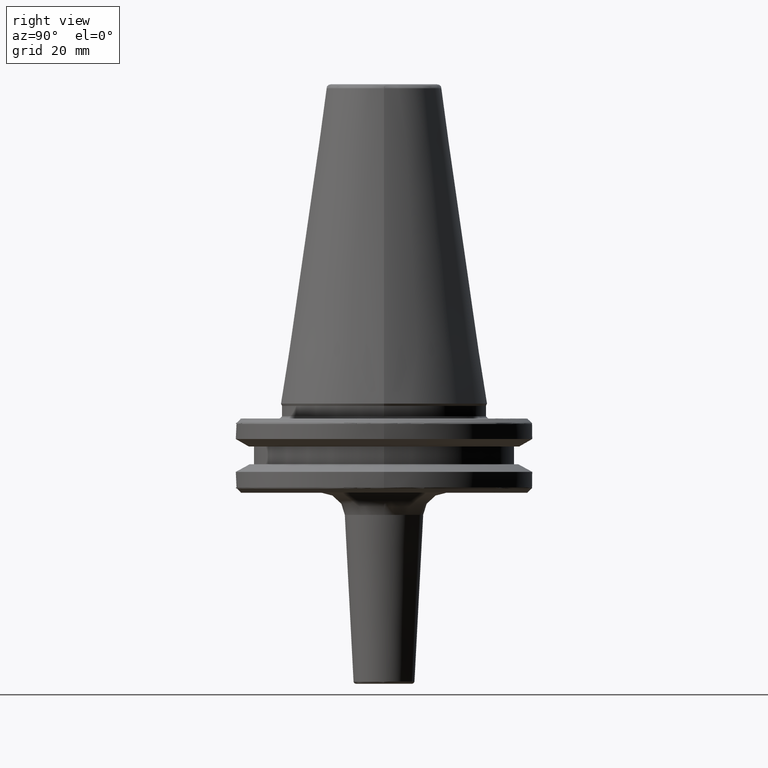
[diagram: clean part render]
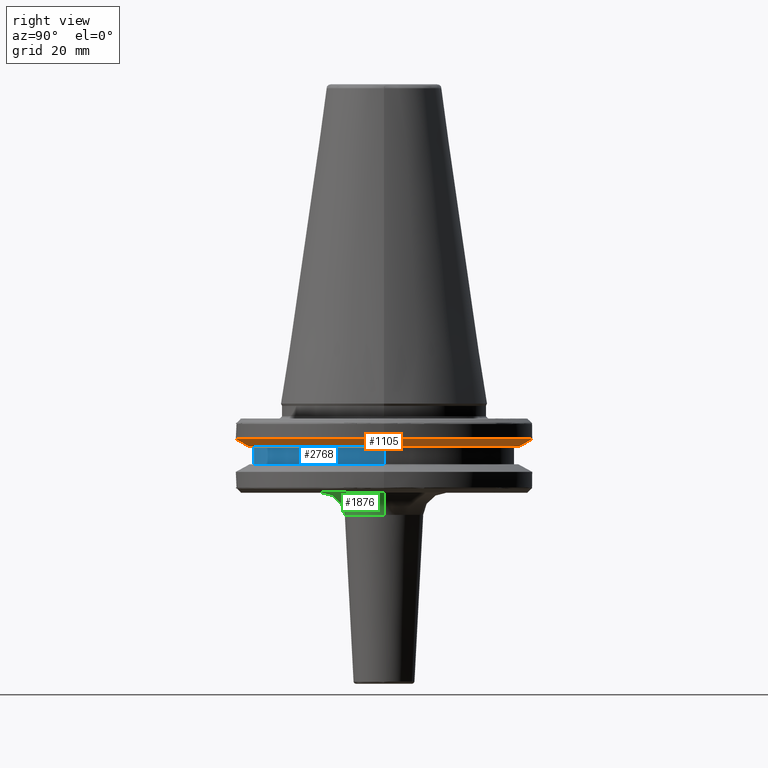
[diagram: same view with three faces highlighted in distinct colors, each labeled with its STEP entity id]
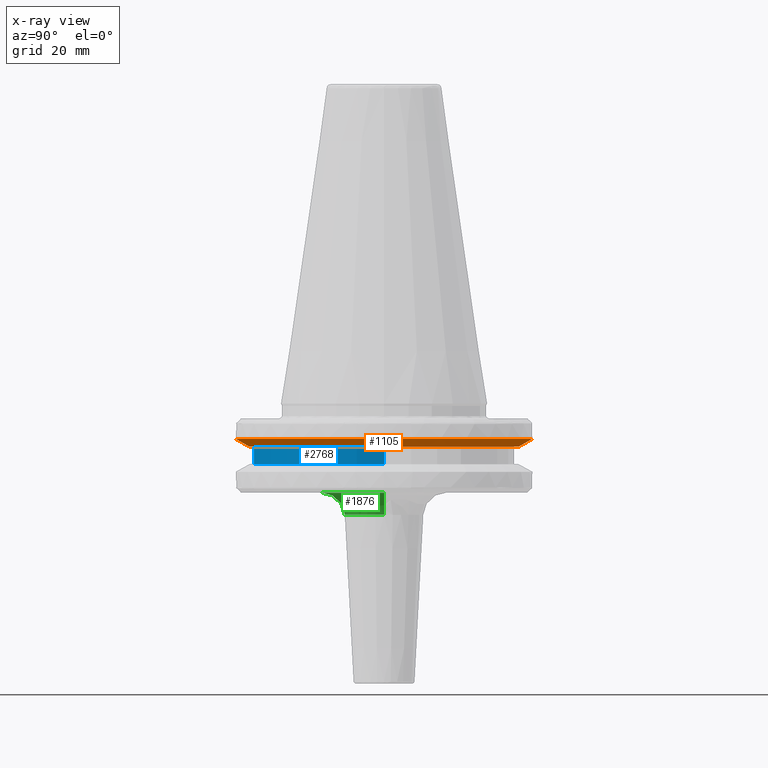
[diagram: x-ray of the same camera — body ghosted, the three highlighted faces saturated]
A machine part, right view with three faces highlighted in distinct colors.
The next image is the same camera in x-ray (body ghosted, the three faces saturated) — at least one of them is partly hidden behind the body in this view.
Their STEP definitions:

[orange] entity #1105 — the highlighted conical surface has half-angle 60 deg.
#135 = EDGE_CURVE ( 'NONE', #2970, #1227, #1018, .T. ) ;
#182 = EDGE_LOOP ( 'NONE', ( #729, #1624, #2901, #2964, #244 ) ) ;
#244 = ORIENTED_EDGE ( 'NONE', *, *, #2809, .F. ) ;
#409 = VECTOR ( 'NONE', #1440, 1000.000000000000000 ) ;
#507 = CARTESIAN_POINT ( 'NONE',  ( 31.75000000000000000, 0.0000000000000000000, -7.578163357943284800 ) ) ;
#588 = CIRCLE ( 'NONE', #2101, 31.75000000000000000 ) ;
#664 = VERTEX_POINT ( 'NONE', #1580 ) ;
#689 = EDGE_CURVE ( 'NONE', #1493, #1227, #588, .T. ) ;
#729 = ORIENTED_EDGE ( 'NONE', *, *, #2896, .T. ) ;
#847 = DIRECTION ( 'NONE',  ( 0.0000000000000000000, 0.0000000000000000000, 1.000000000000000000 ) ) ;
#849 = CARTESIAN_POINT ( 'NONE',  ( 0.0000000000000000000, 0.0000000000000000000, -7.578163357943284800 ) ) ;
#882 = CIRCLE ( 'NONE', #2793, 28.94089653438084400 ) ;
#1017 = VECTOR ( 'NONE', #2759, 1000.000000000000000 ) ;
#1018 = LINE ( 'NONE', #2385, #409 ) ;
#1084 = DIRECTION ( 'NONE',  ( 1.000000000000000000, 0.0000000000000000000, 0.0000000000000000000 ) ) ;
#1105 = ADVANCED_FACE ( 'NONE', ( #2291 ), #2770, .T. ) ;
#1133 = CARTESIAN_POINT ( 'NONE',  ( 0.0000000000000000000, -31.75000000000000700, -7.578163357943281200 ) ) ;
#1218 = DIRECTION ( 'NONE',  ( 0.0000000000000000000, -1.365923996832131300E-017, 1.000000000000000000 ) ) ;
#1227 = VERTEX_POINT ( 'NONE', #2014 ) ;
#1228 = CARTESIAN_POINT ( 'NONE',  ( 3.716245608910634800E-015, 28.94089653438084400, -9.200000000000013500 ) ) ;
#1323 = DIRECTION ( 'NONE',  ( 0.0000000000000000000, -1.365923996832131300E-017, 1.000000000000000000 ) ) ;
#1440 = DIRECTION ( 'NONE',  ( 1.060575238724907500E-016, 0.8660254037844391500, 0.4999999999999991100 ) ) ;
#1493 = VERTEX_POINT ( 'NONE', #507 ) ;
#1580 = CARTESIAN_POINT ( 'NONE',  ( 0.0000000000000000000, -28.94089653438084400, -9.200000000000013500 ) ) ;
#1624 = ORIENTED_EDGE ( 'NONE', *, *, #135, .T. ) ;
#1732 = DIRECTION ( 'NONE',  ( 0.0000000000000000000, -1.000000000000000000, 0.0000000000000000000 ) ) ;
#2014 = CARTESIAN_POINT ( 'NONE',  ( 3.888253587292846500E-015, 31.75000000000000000, -7.578163357943284800 ) ) ;
#2101 = AXIS2_PLACEMENT_3D ( 'NONE', #2252, #847, #2483 ) ;
#2206 = VERTEX_POINT ( 'NONE', #3015 ) ;
#2252 = CARTESIAN_POINT ( 'NONE',  ( 0.0000000000000000000, 0.0000000000000000000, -7.578163357943284800 ) ) ;
#2291 = FACE_OUTER_BOUND ( 'NONE', #182, .T. ) ;
#2385 = CARTESIAN_POINT ( 'NONE',  ( 3.888253587292847300E-015, 31.75000000000000700, -7.578163357943281200 ) ) ;
#2416 = EDGE_CURVE ( 'NONE', #2206, #1493, #2495, .T. ) ;
#2483 = DIRECTION ( 'NONE',  ( 1.000000000000000000, 0.0000000000000000000, 0.0000000000000000000 ) ) ;
#2484 = DIRECTION ( 'NONE',  ( 0.0000000000000000000, 0.0000000000000000000, 1.000000000000000000 ) ) ;
#2495 = CIRCLE ( 'NONE', #2639, 31.75000000000000000 ) ;
#2522 = AXIS2_PLACEMENT_3D ( 'NONE', #2954, #1323, #1732 ) ;
#2612 = CARTESIAN_POINT ( 'NONE',  ( 0.0000000000000000000, 2.215305588326933300E-017, -9.200000000000013500 ) ) ;
#2639 = AXIS2_PLACEMENT_3D ( 'NONE', #849, #2484, #1084 ) ;
#2759 = DIRECTION ( 'NONE',  ( 0.0000000000000000000, -0.8660254037844391500, 0.4999999999999991100 ) ) ;
#2770 = CONICAL_SURFACE ( 'NONE', #2522, 31.75000000000000700, 1.047197551196598700 ) ;
#2793 = AXIS2_PLACEMENT_3D ( 'NONE', #2612, #1218, #2853 ) ;
#2809 = EDGE_CURVE ( 'NONE', #664, #2206, #2832, .T. ) ;
#2832 = LINE ( 'NONE', #1133, #1017 ) ;
#2853 = DIRECTION ( 'NONE',  ( 0.0000000000000000000, -1.000000000000000000, 0.0000000000000000000 ) ) ;
#2896 = EDGE_CURVE ( 'NONE', #664, #2970, #882, .T. ) ;
#2901 = ORIENTED_EDGE ( 'NONE', *, *, #689, .F. ) ;
#2954 = CARTESIAN_POINT ( 'NONE',  ( 0.0000000000000000000, 0.0000000000000000000, -7.578163357943281200 ) ) ;
#2964 = ORIENTED_EDGE ( 'NONE', *, *, #2416, .F. ) ;
#2970 = VERTEX_POINT ( 'NONE', #1228 ) ;
#3015 = CARTESIAN_POINT ( 'NONE',  ( 0.0000000000000000000, -31.75000000000000000, -7.578163357943284800 ) ) ;

[blue] entity #2768 — the highlighted cylindrical surface (partial cylindrical patch) has radius 28 mm, axis along (0, 0, 1).
#19 = EDGE_CURVE ( 'NONE', #924, #2338, #1248, .T. ) ;
#94 = DIRECTION ( 'NONE',  ( 0.0000000000000000000, 0.0000000000000000000, 1.000000000000000000 ) ) ;
#265 = DIRECTION ( 'NONE',  ( 0.0000000000000000000, 0.0000000000000000000, 1.000000000000000000 ) ) ;
#395 = CARTESIAN_POINT ( 'NONE',  ( 28.00000000000000000, 0.0000000000000000000, -13.00000000000001100 ) ) ;
#454 = LINE ( 'NONE', #788, #2801 ) ;
#466 = VERTEX_POINT ( 'NONE', #987 ) ;
#470 = VECTOR ( 'NONE', #265, 1000.000000000000000 ) ;
#500 = CARTESIAN_POINT ( 'NONE',  ( -28.00000000000000000, 3.429011037612589300E-015, 113.5216080541959500 ) ) ;
#585 = CARTESIAN_POINT ( 'NONE',  ( -28.00000000000000000, 3.429011037612589300E-015, -9.199999999999999300 ) ) ;
#587 = CARTESIAN_POINT ( 'NONE',  ( 0.0000000000000000000, 0.0000000000000000000, -13.00000000000001100 ) ) ;
#639 = EDGE_LOOP ( 'NONE', ( #2346, #868, #1466, #1788 ) ) ;
#719 = VERTEX_POINT ( 'NONE', #395 ) ;
#788 = CARTESIAN_POINT ( 'NONE',  ( 28.00000000000000000, 0.0000000000000000000, 113.5216080541959500 ) ) ;
#821 = DIRECTION ( 'NONE',  ( 1.000000000000000000, 0.0000000000000000000, 0.0000000000000000000 ) ) ;
#834 = CARTESIAN_POINT ( 'NONE',  ( 0.0000000000000000000, 0.0000000000000000000, -9.199999999999999300 ) ) ;
#867 = DIRECTION ( 'NONE',  ( 0.0000000000000000000, 0.0000000000000000000, 1.000000000000000000 ) ) ;
#868 = ORIENTED_EDGE ( 'NONE', *, *, #1184, .T. ) ;
#906 = EDGE_CURVE ( 'NONE', #719, #924, #454, .T. ) ;
#924 = VERTEX_POINT ( 'NONE', #2666 ) ;
#987 = CARTESIAN_POINT ( 'NONE',  ( -28.00000000000000000, 3.429011037612589300E-015, -13.00000000000001100 ) ) ;
#1099 = CYLINDRICAL_SURFACE ( 'NONE', #1530, 28.00000000000000000 ) ;
#1184 = EDGE_CURVE ( 'NONE', #466, #719, #2207, .T. ) ;
#1248 = CIRCLE ( 'NONE', #1753, 28.00000000000000000 ) ;
#1448 = EDGE_CURVE ( 'NONE', #466, #2338, #1699, .T. ) ;
#1466 = ORIENTED_EDGE ( 'NONE', *, *, #906, .T. ) ;
#1513 = AXIS2_PLACEMENT_3D ( 'NONE', #587, #2222, #821 ) ;
#1530 = AXIS2_PLACEMENT_3D ( 'NONE', #2990, #867, #2746 ) ;
#1699 = LINE ( 'NONE', #500, #470 ) ;
#1753 = AXIS2_PLACEMENT_3D ( 'NONE', #834, #2708, #2204 ) ;
#1788 = ORIENTED_EDGE ( 'NONE', *, *, #19, .T. ) ;
#2204 = DIRECTION ( 'NONE',  ( 1.000000000000000000, 0.0000000000000000000, 0.0000000000000000000 ) ) ;
#2207 = CIRCLE ( 'NONE', #1513, 28.00000000000000000 ) ;
#2222 = DIRECTION ( 'NONE',  ( 0.0000000000000000000, 0.0000000000000000000, 1.000000000000000000 ) ) ;
#2338 = VERTEX_POINT ( 'NONE', #585 ) ;
#2346 = ORIENTED_EDGE ( 'NONE', *, *, #1448, .F. ) ;
#2411 = FACE_OUTER_BOUND ( 'NONE', #639, .T. ) ;
#2666 = CARTESIAN_POINT ( 'NONE',  ( 28.00000000000000000, 0.0000000000000000000, -9.199999999999999300 ) ) ;
#2708 = DIRECTION ( 'NONE',  ( -0.0000000000000000000, -0.0000000000000000000, -1.000000000000000000 ) ) ;
#2746 = DIRECTION ( 'NONE',  ( 1.000000000000000000, 0.0000000000000000000, 0.0000000000000000000 ) ) ;
#2768 = ADVANCED_FACE ( 'NONE', ( #2411 ), #1099, .T. ) ;
#2801 = VECTOR ( 'NONE', #94, 1000.000000000000000 ) ;
#2990 = CARTESIAN_POINT ( 'NONE',  ( 0.0000000000000000000, 0.0000000000000000000, 113.5216080541959500 ) ) ;

[green] entity #1876 — the highlighted face is a freeform B-spline surface patch.
#5 = CARTESIAN_POINT ( 'NONE',  ( -12.46909277981846000, -4.875599099649588400, -19.10000000000000500 ) ) ;
#17 = CARTESIAN_POINT ( 'NONE',  ( -7.661486979477780700, -10.98054615866863100, -19.10000000000000500 ) ) ;
#24 = CARTESIAN_POINT ( 'NONE',  ( 13.00878144026618700, -3.178475553171886700, -19.10000000000000900 ) ) ;
#29 = CARTESIAN_POINT ( 'NONE',  ( -3.910461658563519500, -12.81745921791370600, -19.09999999999999800 ) ) ;
#34 = CARTESIAN_POINT ( 'NONE',  ( 2.259867696471490600, -13.19637189988699300, -19.10000000000000100 ) ) ;
#41 = CARTESIAN_POINT ( 'NONE',  ( 13.16013173773927900, -2.461333786532432700, -19.10000000000000100 ) ) ;
#42 = CARTESIAN_POINT ( 'NONE',  ( 6.654124727169800300, -11.62158286706378600, -19.10000000000000500 ) ) ;
#50 = CARTESIAN_POINT ( 'NONE',  ( 11.17501105179448500, -7.373524765434148700, -19.10000000000000500 ) ) ;
#68 = DIRECTION ( 'NONE',  ( -1.000000000000000000, 0.0000000000000000000, 0.0000000000000000000 ) ) ;
#96 = CARTESIAN_POINT ( 'NONE',  ( -8.395153332477674400, 0.0000000000000000000, -23.83832021878532400 ) ) ;
#178 = CARTESIAN_POINT ( 'NONE',  ( 10.57954887311631100, -21.15909774623261400, -19.10000000000001200 ) ) ;
#239 = CARTESIAN_POINT ( 'NONE',  ( -13.22590502177441600, -2.083449108820010700, -19.10000000000000100 ) ) ;
#248 = CARTESIAN_POINT ( 'NONE',  ( -12.00169355804853500, -5.963809926428293600, -19.10000000000000500 ) ) ;
#255 = CARTESIAN_POINT ( 'NONE',  ( -7.422709328536371700, -11.14241065722313600, -19.10000000000000900 ) ) ;
#264 = CARTESIAN_POINT ( 'NONE',  ( -2.808615001692920100, -13.09119927299659700, -19.10000000000000900 ) ) ;
#273 = CARTESIAN_POINT ( 'NONE',  ( 2.385821274794350400, -13.17403052157813500, -19.10000000000000100 ) ) ;
#279 = CARTESIAN_POINT ( 'NONE',  ( 13.38830100625054300, -0.8190720094868240200, -19.10000000000000500 ) ) ;
#282 = CARTESIAN_POINT ( 'NONE',  ( 7.135975353713558200, -11.32818970529628400, -19.10000000000000100 ) ) ;
#288 = CARTESIAN_POINT ( 'NONE',  ( 11.79435517621982900, -6.364030896886411000, -19.10000000000000500 ) ) ;
#298 = VERTEX_POINT ( 'NONE', #876 ) ;
#324 = EDGE_CURVE ( 'NONE', #298, #1088, #2902, .T. ) ;
#394 = B_SPLINE_CURVE_WITH_KNOTS ( 'NONE', 3,
 ( #1635, #1873, #3036, #1647, #239, #1885, #474, #2109, #705, #2337, #930, #2573, #1177, #2820, #1411, #5, #1651, #248, #1894, #482, #2118, #712, #2347, #936, #2583, #1182, #2828, #1418, #17, #1661, #255, #1904, #491, #2127, #723, #2359, #945, #2589, #1197, #2834, #1426, #29, #1669, #264, #1912, #499, #2135, #730, #2364, #955, #2597, #1206, #2840, #1434, #34, #1675, #273, #1919, #506, #2142, #739, #2372, #962, #2607, #1212, #2848, #1443, #42, #1680, #282, #1926, #512, #2150, #749, #2381, #971, #2614, #1221, #2855, #1452, #50, #1686, #288, #1933, #523, #2159, #760, #2391, #980, #2625, #1231, #24, #2604, #1210, #2847, #1441, #41, #1677, #279, #1922 ),
 .UNSPECIFIED., .F., .F.,
 ( 4, 1, 1, 1, 1, 2, 2, 1, 1, 1, 2, 2, 1, 1, 1, 2, 2, 2, 1, 1, 1, 2, 2, 1, 1, 1, 1, 2, 2, 1, 1, 1, 1, 2, 2, 2, 1, 1, 1, 1, 2, 2, 1, 1, 1, 2, 2, 1, 1, 1, 2, 2, 2, 1, 1, 1, 2, 2, 1, 1, 1, 1, 2, 2, 1, 1, 1, 1, 2, 2, 4 ),
 ( 0.0000000000000000000, 0.03124999999999834900, 0.04687499999999752300, 0.05468749999999710000, 0.05859374999999688400, 0.06054687499999676600, 0.06249999999999664900, 0.09374999999999501800, 0.1093749999999942300, 0.1171874999999938500, 0.1210937499999936900, 0.1249999999999935300, 0.1562499999999924200, 0.1718749999999919000, 0.1796874999999916500, 0.1835937499999915300, 0.1874999999999914500, 0.2499999999999895600, 0.2812499999999886200, 0.2968749999999881200, 0.3046874999999879000, 0.3085937499999877300, 0.3124999999999875700, 0.3437499999999867900, 0.3593749999999864000, 0.3671874999999861800, 0.3710937499999861200, 0.3730468749999860700, 0.3749999999999860100, 0.4062499999999859600, 0.4218749999999859600, 0.4296874999999859600, 0.4335937499999859600, 0.4355468749999859600, 0.4374999999999859600, 0.4999999999999862300, 0.5312499999999863400, 0.5468749999999864600, 0.5546874999999864600, 0.5585937499999864600, 0.5605468749999864600, 0.5624999999999864600, 0.5937499999999867900, 0.6093749999999869000, 0.6171874999999869000, 0.6210937499999869000, 0.6249999999999869000, 0.6562499999999876800, 0.6718749999999880100, 0.6796874999999882300, 0.6835937499999884500, 0.6874999999999885600, 0.7499999999999901200, 0.7812499999999907900, 0.7968749999999912300, 0.8046874999999914500, 0.8085937499999915600, 0.8124999999999916700, 0.8437499999999926700, 0.8593749999999932300, 0.8671874999999934500, 0.8710937499999935600, 0.8730468749999936700, 0.8749999999999937800, 0.9062499999999954500, 0.9218749999999961100, 0.9296874999999964500, 0.9335937499999967800, 0.9355468749999968900, 0.9374999999999970000, 1.000000000000000000 ),
 .UNSPECIFIED. ) ;
#404 = EDGE_LOOP ( 'NONE', ( #894, #1792, #1284, #2258, #2316 ) ) ;
#415 = CARTESIAN_POINT ( 'NONE',  ( -10.57954887311630700, -2.591242132776976100E-015, -19.10000000000001600 ) ) ;
#456 = EDGE_CURVE ( 'NONE', #1909, #2050, #1501, .T. ) ;
#474 = CARTESIAN_POINT ( 'NONE',  ( -13.18305052587099600, -2.335468491252535600, -19.10000000000000500 ) ) ;
#482 = CARTESIAN_POINT ( 'NONE',  ( -11.41820589744721900, -6.992445639026860800, -19.10000000000000500 ) ) ;
#491 = CARTESIAN_POINT ( 'NONE',  ( -6.947681903418024200, -11.45344219132566400, -19.10000000000000900 ) ) ;
#499 = CARTESIAN_POINT ( 'NONE',  ( -2.542840456505465400, -13.14462994986652300, -19.10000000000000500 ) ) ;
#506 = CARTESIAN_POINT ( 'NONE',  ( 2.862957590022177100, -13.08582873842546200, -19.10000000000000900 ) ) ;
#512 = CARTESIAN_POINT ( 'NONE',  ( 7.277875736388113900, -11.23754428245870700, -19.10000000000000900 ) ) ;
#523 = CARTESIAN_POINT ( 'NONE',  ( 12.29807176292705500, -5.294068781216588500, -19.10000000000000900 ) ) ;
#525 = FACE_OUTER_BOUND ( 'NONE', #404, .T. ) ;
#526 = EDGE_CURVE ( 'NONE', #2050, #298, #1991, .T. ) ;
#623 = DIRECTION ( 'NONE',  ( 1.000000000000000000, 1.224646799147353500E-016, 0.0000000000000000000 ) ) ;
#651 = CARTESIAN_POINT ( 'NONE',  ( 8.542152061214645500, -17.08430412242928800, -21.03341738283256400 ) ) ;
#705 = CARTESIAN_POINT ( 'NONE',  ( -13.16972322311049100, -2.409502275690831300, -19.10000000000000500 ) ) ;
#712 = CARTESIAN_POINT ( 'NONE',  ( -11.26754454747683100, -7.231336283098859700, -19.10000000000000900 ) ) ;
#723 = CARTESIAN_POINT ( 'NONE',  ( -5.655348805896406500, -12.13901205658079100, -19.10000000000000500 ) ) ;
#730 = CARTESIAN_POINT ( 'NONE',  ( -2.461328307519790500, -13.16013275186782600, -19.10000000000000500 ) ) ;
#732 = DIRECTION ( 'NONE',  ( 0.0000000000000000000, 1.000000000000000000, 0.0000000000000000000 ) ) ;
#739 = CARTESIAN_POINT ( 'NONE',  ( 4.216361932177053800, -12.71036615545402500, -19.10000000000000500 ) ) ;
#740 = AXIS2_PLACEMENT_3D ( 'NONE', #774, #757, #68 ) ;
#749 = CARTESIAN_POINT ( 'NONE',  ( 8.813627538970290900, -10.12023676936172800, -19.10000000000000100 ) ) ;
#757 = DIRECTION ( 'NONE',  ( 0.0000000000000000000, 0.0000000000000000000, -1.000000000000000000 ) ) ;
#760 = CARTESIAN_POINT ( 'NONE',  ( 12.40623618034758600, -5.033161682857619100, -19.10000000000000100 ) ) ;
#774 = CARTESIAN_POINT ( 'NONE',  ( 0.0000000000000000000, 0.0000000000000000000, -23.83832021878532400 ) ) ;
#823 = CARTESIAN_POINT ( 'NONE',  ( 8.395153332477674400, 1.333851881514802100E-015, -23.83832021878532400 ) ) ;
#876 = CARTESIAN_POINT ( 'NONE',  ( 0.0000000000000000000, -8.395153332477674400, -23.83832021878532400 ) ) ;
#880 = CARTESIAN_POINT ( 'NONE',  ( -8.542152061214647300, -2.092223835919296300E-015, -21.03341738283256700 ) ) ;
#894 = ORIENTED_EDGE ( 'NONE', *, *, #456, .F. ) ;
#901 =( BOUNDED_SURFACE ( )  B_SPLINE_SURFACE ( 3, 3, ( 
 ( #1570, #2744, #1354, #2987 ),
 ( #1588, #178, #1826, #415 ),
 ( #2058, #651, #2282, #880 ),
 ( #2518, #1122, #1270, #2906 ) ),
 .UNSPECIFIED., .F., .F., .F. ) 
 B_SPLINE_SURFACE_WITH_KNOTS ( ( 4, 4 ),
 ( 4, 4 ),
 ( 0.0000000000000000000, 1.000000000000000000 ),
 ( 0.0000000000000000000, 1.000000000000000000 ),
 .UNSPECIFIED. ) 
 GEOMETRIC_REPRESENTATION_ITEM ( )  RATIONAL_B_SPLINE_SURFACE ( (
 ( 1.000000000000000000, 0.3333333333333334300, 0.3333333333333334300, 1.000000000000000000),
 ( 0.8169162473415236800, 0.2723054157805079900, 0.2723054157805079900, 0.8169162473415236800),
 ( 0.8169162473415236800, 0.2723054157805079900, 0.2723054157805079900, 0.8169162473415236800),
 ( 1.000000000000000000, 0.3333333333333334300, 0.3333333333333334300, 1.000000000000000000) ) ) 
 REPRESENTATION_ITEM ( '' )  SURFACE ( )  );
#930 = CARTESIAN_POINT ( 'NONE',  ( -12.93704627634007100, -3.494542025833995000, -19.10000000000000500 ) ) ;
#936 = CARTESIAN_POINT ( 'NONE',  ( -10.70040484693796600, -8.099539379703051300, -19.10000000000000100 ) ) ;
#945 = CARTESIAN_POINT ( 'NONE',  ( -5.111694024085918100, -12.37428443263981700, -19.10000000000000100 ) ) ;
#955 = CARTESIAN_POINT ( 'NONE',  ( -0.8185412143517714100, -13.38826858210806800, -19.10000000000000500 ) ) ;
#962 = CARTESIAN_POINT ( 'NONE',  ( 4.725775117968115800, -12.52664261587560400, -19.10000000000000500 ) ) ;
#971 = CARTESIAN_POINT ( 'NONE',  ( 10.25599663668674000, -8.627746190944304100, -19.10000000000000500 ) ) ;
#980 = CARTESIAN_POINT ( 'NONE',  ( 12.43829954866567200, -4.953384298289081200, -19.10000000000000100 ) ) ;
#1088 = VERTEX_POINT ( 'NONE', #96 ) ;
#1122 = CARTESIAN_POINT ( 'NONE',  ( 8.395153332477674400, -16.79030666495534500, -23.83832021878532700 ) ) ;
#1177 = CARTESIAN_POINT ( 'NONE',  ( -12.58375094956666700, -4.573514734805613100, -19.10000000000000500 ) ) ;
#1182 = CARTESIAN_POINT ( 'NONE',  ( -9.140319260449944100, -9.793623875642609300, -19.10000000000000500 ) ) ;
#1197 = CARTESIAN_POINT ( 'NONE',  ( -4.980724181811834400, -12.42737938436853000, -19.10000000000000500 ) ) ;
#1206 = CARTESIAN_POINT ( 'NONE',  ( 1.020745577271535300, -13.36039028327178900, -19.10000000000000500 ) ) ;
#1210 = CARTESIAN_POINT ( 'NONE',  ( 13.12909736974642500, -2.622717851268387100, -19.10000000000000500 ) ) ;
#1212 = CARTESIAN_POINT ( 'NONE',  ( 4.875599099649512000, -12.46909277981871400, -19.10000000000000500 ) ) ;
#1221 = CARTESIAN_POINT ( 'NONE',  ( 10.98054615867009300, -7.661486979476895200, -19.10000000000000900 ) ) ;
#1229 = CIRCLE ( 'NONE', #1561, 4.999999999999999100 ) ;
#1231 = CARTESIAN_POINT ( 'NONE',  ( 12.81745921790931100, -3.910461658575571200, -19.10000000000000500 ) ) ;
#1270 = CARTESIAN_POINT ( 'NONE',  ( -8.395153332477670800, -16.79030666495534900, -23.83832021878532700 ) ) ;
#1284 = ORIENTED_EDGE ( 'NONE', *, *, #1442, .T. ) ;
#1344 = CARTESIAN_POINT ( 'NONE',  ( 13.38830100625054500, 1.639593997332601900E-015, -24.10000000000000900 ) ) ;
#1354 = CARTESIAN_POINT ( 'NONE',  ( -13.38830100625053800, -26.77660201250108700, -19.10000000000000900 ) ) ;
#1393 = CARTESIAN_POINT ( 'NONE',  ( -13.38830100625054300, 0.0000000000000000000, -19.10000000000000500 ) ) ;
#1411 = CARTESIAN_POINT ( 'NONE',  ( -12.48793824363241900, -4.827103128141408700, -19.09999999999999800 ) ) ;
#1418 = CARTESIAN_POINT ( 'NONE',  ( -7.990169225189884400, -10.74708706180081600, -19.10000000000000500 ) ) ;
#1426 = CARTESIAN_POINT ( 'NONE',  ( -4.524618324554092300, -12.60806321549181100, -19.10000000000000900 ) ) ;
#1434 = CARTESIAN_POINT ( 'NONE',  ( 2.083382019142660600, -13.22591743414145800, -19.10000000000001200 ) ) ;
#1441 = CARTESIAN_POINT ( 'NONE',  ( 13.15482734520214000, -2.489542818347562700, -19.10000000000000100 ) ) ;
#1442 = EDGE_CURVE ( 'NONE', #2205, #1088, #1229, .T. ) ;
#1443 = CARTESIAN_POINT ( 'NONE',  ( 5.963809926429383300, -12.00169355804497300, -19.10000000000000900 ) ) ;
#1452 = CARTESIAN_POINT ( 'NONE',  ( 11.14241065722360300, -7.422709328536086600, -19.10000000000001600 ) ) ;
#1501 = CIRCLE ( 'NONE', #2063, 4.999999999999999100 ) ;
#1561 = AXIS2_PLACEMENT_3D ( 'NONE', #2137, #732, #2367 ) ;
#1570 = CARTESIAN_POINT ( 'NONE',  ( 13.38830100625054500, 1.639593997332601900E-015, -19.10000000000000900 ) ) ;
#1588 = CARTESIAN_POINT ( 'NONE',  ( 10.57954887311630700, 1.295621066388487400E-015, -19.10000000000001600 ) ) ;
#1596 = DIRECTION ( 'NONE',  ( 0.0000000000000000000, 0.0000000000000000000, -1.000000000000000000 ) ) ;
#1608 = CARTESIAN_POINT ( 'NONE',  ( 0.0000000000000000000, 0.0000000000000000000, -23.83832021878532400 ) ) ;
#1635 = CARTESIAN_POINT ( 'NONE',  ( -13.38830100625054300, 0.0000000000000000000, -19.10000000000000500 ) ) ;
#1647 = CARTESIAN_POINT ( 'NONE',  ( -13.27887288767881600, -1.729993907089290700, -19.10000000000000500 ) ) ;
#1651 = CARTESIAN_POINT ( 'NONE',  ( -12.28182858187937400, -5.348672136607784300, -19.10000000000000100 ) ) ;
#1661 = CARTESIAN_POINT ( 'NONE',  ( -7.518503067851046500, -11.07801017539250700, -19.10000000000000500 ) ) ;
#1669 = CARTESIAN_POINT ( 'NONE',  ( -3.178475553162844100, -13.00878144026948700, -19.10000000000000500 ) ) ;
#1675 = CARTESIAN_POINT ( 'NONE',  ( 2.335447440154795600, -13.18305442056779600, -19.10000000000000500 ) ) ;
#1677 = CARTESIAN_POINT ( 'NONE',  ( 13.31379675530809300, -1.631130715390124400, -19.10000000000000500 ) ) ;
#1680 = CARTESIAN_POINT ( 'NONE',  ( 6.992445639027334200, -11.41820589744566000, -19.10000000000000900 ) ) ;
#1686 = CARTESIAN_POINT ( 'NONE',  ( 11.45344219132682900, -6.947681903414530100, -19.10000000000000900 ) ) ;
#1792 = ORIENTED_EDGE ( 'NONE', *, *, #2878, .F. ) ;
#1826 = CARTESIAN_POINT ( 'NONE',  ( -10.57954887311630500, -21.15909774623261800, -19.10000000000001200 ) ) ;
#1873 = CARTESIAN_POINT ( 'NONE',  ( -13.38830100625054700, -0.4093582345095633800, -19.10000000000001200 ) ) ;
#1876 = ADVANCED_FACE ( 'NONE', ( #525 ), #901, .F. ) ;
#1885 = CARTESIAN_POINT ( 'NONE',  ( -13.19636525040465900, -2.259903637370072300, -19.10000000000000500 ) ) ;
#1894 = CARTESIAN_POINT ( 'NONE',  ( -11.62158286706645100, -6.654124727168989400, -19.10000000000000500 ) ) ;
#1904 = CARTESIAN_POINT ( 'NONE',  ( -7.373524765433716200, -11.17501105179463000, -19.10000000000000500 ) ) ;
#1909 = VERTEX_POINT ( 'NONE', #2220 ) ;
#1912 = CARTESIAN_POINT ( 'NONE',  ( -2.622717851265560900, -13.12909736974744800, -19.10000000000000100 ) ) ;
#1919 = CARTESIAN_POINT ( 'NONE',  ( 2.409502275690421900, -13.16972322311054300, -19.10000000000000500 ) ) ;
#1922 = CARTESIAN_POINT ( 'NONE',  ( 13.38830100625054300, 1.639593997332601900E-015, -19.10000000000000500 ) ) ;
#1926 = CARTESIAN_POINT ( 'NONE',  ( 7.231336283099007100, -11.26754454747634400, -19.10000000000000900 ) ) ;
#1933 = CARTESIAN_POINT ( 'NONE',  ( 12.13901205658231500, -5.655348805891827100, -19.10000000000000900 ) ) ;
#1962 = AXIS2_PLACEMENT_3D ( 'NONE', #1608, #1596, #2509 ) ;
#1991 = CIRCLE ( 'NONE', #1962, 8.395153332477674400 ) ;
#2050 = VERTEX_POINT ( 'NONE', #823 ) ;
#2058 = CARTESIAN_POINT ( 'NONE',  ( 8.542152061214647300, 1.046111917959648100E-015, -21.03341738283256700 ) ) ;
#2059 = DIRECTION ( 'NONE',  ( 1.224646799147353200E-016, -1.000000000000000000, 0.0000000000000000000 ) ) ;
#2063 = AXIS2_PLACEMENT_3D ( 'NONE', #1344, #2059, #623 ) ;
#2109 = CARTESIAN_POINT ( 'NONE',  ( -13.17402852673343000, -2.385832057063924400, -19.09999999999999400 ) ) ;
#2118 = CARTESIAN_POINT ( 'NONE',  ( -11.32818970529722000, -7.135975353713274000, -19.10000000000000500 ) ) ;
#2127 = CARTESIAN_POINT ( 'NONE',  ( -6.364030896892517200, -11.79435517621779700, -19.10000000000000500 ) ) ;
#2135 = CARTESIAN_POINT ( 'NONE',  ( -2.489542818346715400, -13.15482734520244900, -19.10000000000000500 ) ) ;
#2137 = CARTESIAN_POINT ( 'NONE',  ( -13.38830100625054500, 0.0000000000000000000, -24.10000000000000900 ) ) ;
#2142 = CARTESIAN_POINT ( 'NONE',  ( 3.494542025845457400, -12.93704627633853700, -19.10000000000000500 ) ) ;
#2150 = CARTESIAN_POINT ( 'NONE',  ( 8.099539379689149500, -10.70040484695037700, -19.10000000000000100 ) ) ;
#2159 = CARTESIAN_POINT ( 'NONE',  ( 12.37428443264029500, -5.111694024084483700, -19.10000000000000500 ) ) ;
#2205 = VERTEX_POINT ( 'NONE', #1393 ) ;
#2220 = CARTESIAN_POINT ( 'NONE',  ( 13.38830100625054300, 1.639593997332601900E-015, -19.10000000000000500 ) ) ;
#2258 = ORIENTED_EDGE ( 'NONE', *, *, #324, .F. ) ;
#2282 = CARTESIAN_POINT ( 'NONE',  ( -8.542152061214642000, -17.08430412242929100, -21.03341738283256400 ) ) ;
#2316 = ORIENTED_EDGE ( 'NONE', *, *, #526, .F. ) ;
#2337 = CARTESIAN_POINT ( 'NONE',  ( -13.08582873842633800, -2.862957590015627700, -19.10000000000000500 ) ) ;
#2347 = CARTESIAN_POINT ( 'NONE',  ( -11.23754428245948000, -7.277875736387250600, -19.10000000000000500 ) ) ;
#2359 = CARTESIAN_POINT ( 'NONE',  ( -5.294068781219259300, -12.29807176292616700, -19.10000000000000900 ) ) ;
#2364 = CARTESIAN_POINT ( 'NONE',  ( -1.631306043794657800, -13.31376430319458000, -19.10000000000001200 ) ) ;
#2367 = DIRECTION ( 'NONE',  ( -1.000000000000000000, 0.0000000000000000000, 0.0000000000000000000 ) ) ;
#2372 = CARTESIAN_POINT ( 'NONE',  ( 4.573514734810628600, -12.58375094956599900, -19.10000000000000900 ) ) ;
#2381 = CARTESIAN_POINT ( 'NONE',  ( 9.793623875644504700, -9.140319260448793100, -19.10000000000000900 ) ) ;
#2391 = CARTESIAN_POINT ( 'NONE',  ( 12.42737938436867800, -4.980724181811401900, -19.10000000000000100 ) ) ;
#2509 = DIRECTION ( 'NONE',  ( -1.000000000000000000, 0.0000000000000000000, 0.0000000000000000000 ) ) ;
#2518 = CARTESIAN_POINT ( 'NONE',  ( 8.395153332477674400, 1.028109765697001900E-015, -23.83832021878532400 ) ) ;
#2573 = CARTESIAN_POINT ( 'NONE',  ( -12.71036615545517600, -4.216361932168456200, -19.10000000000000500 ) ) ;
#2583 = CARTESIAN_POINT ( 'NONE',  ( -10.12023676935942300, -8.813627538974090600, -19.10000000000000100 ) ) ;
#2589 = CARTESIAN_POINT ( 'NONE',  ( -5.033161682858460200, -12.40623618034730500, -19.09999999999999800 ) ) ;
#2597 = CARTESIAN_POINT ( 'NONE',  ( 0.4092706071758830900, -13.38831721832177900, -19.10000000000000900 ) ) ;
#2604 = CARTESIAN_POINT ( 'NONE',  ( 13.09119927299467000, -2.808615001698191900, -19.10000000000000500 ) ) ;
#2607 = CARTESIAN_POINT ( 'NONE',  ( 4.827103128142995900, -12.48793824363221100, -19.10000000000000100 ) ) ;
#2614 = CARTESIAN_POINT ( 'NONE',  ( 10.74708706180330600, -7.990169225188370000, -19.10000000000000500 ) ) ;
#2625 = CARTESIAN_POINT ( 'NONE',  ( 12.60806321548929200, -4.524618324560977500, -19.10000000000000100 ) ) ;
#2744 = CARTESIAN_POINT ( 'NONE',  ( 13.38830100625054900, -26.77660201250108300, -19.10000000000000900 ) ) ;
#2820 = CARTESIAN_POINT ( 'NONE',  ( -12.52664261587600900, -4.725775117965093300, -19.10000000000000900 ) ) ;
#2828 = CARTESIAN_POINT ( 'NONE',  ( -8.627746190946323800, -10.25599663668341900, -19.10000000000001200 ) ) ;
#2834 = CARTESIAN_POINT ( 'NONE',  ( -4.953384298289512900, -12.43829954866551200, -19.10000000000000500 ) ) ;
#2840 = CARTESIAN_POINT ( 'NONE',  ( 1.729878896213833600, -13.27889416602231200, -19.10000000000000500 ) ) ;
#2847 = CARTESIAN_POINT ( 'NONE',  ( 13.14462994986592300, -2.542840456507119700, -19.10000000000000100 ) ) ;
#2848 = CARTESIAN_POINT ( 'NONE',  ( 5.348672136608407800, -12.28182858187734000, -19.10000000000000900 ) ) ;
#2855 = CARTESIAN_POINT ( 'NONE',  ( 11.07801017539338100, -7.518503067850509100, -19.10000000000000500 ) ) ;
#2878 = EDGE_CURVE ( 'NONE', #2205, #1909, #394, .T. ) ;
#2902 = CIRCLE ( 'NONE', #740, 8.395153332477674400 ) ;
#2906 = CARTESIAN_POINT ( 'NONE',  ( -8.395153332477674400, -2.056219531394003800E-015, -23.83832021878532400 ) ) ;
#2987 = CARTESIAN_POINT ( 'NONE',  ( -13.38830100625054500, -3.279187994665203800E-015, -19.10000000000000900 ) ) ;
#3036 = CARTESIAN_POINT ( 'NONE',  ( -13.36036191214712900, -1.020898925105477900, -19.10000000000000500 ) ) ;